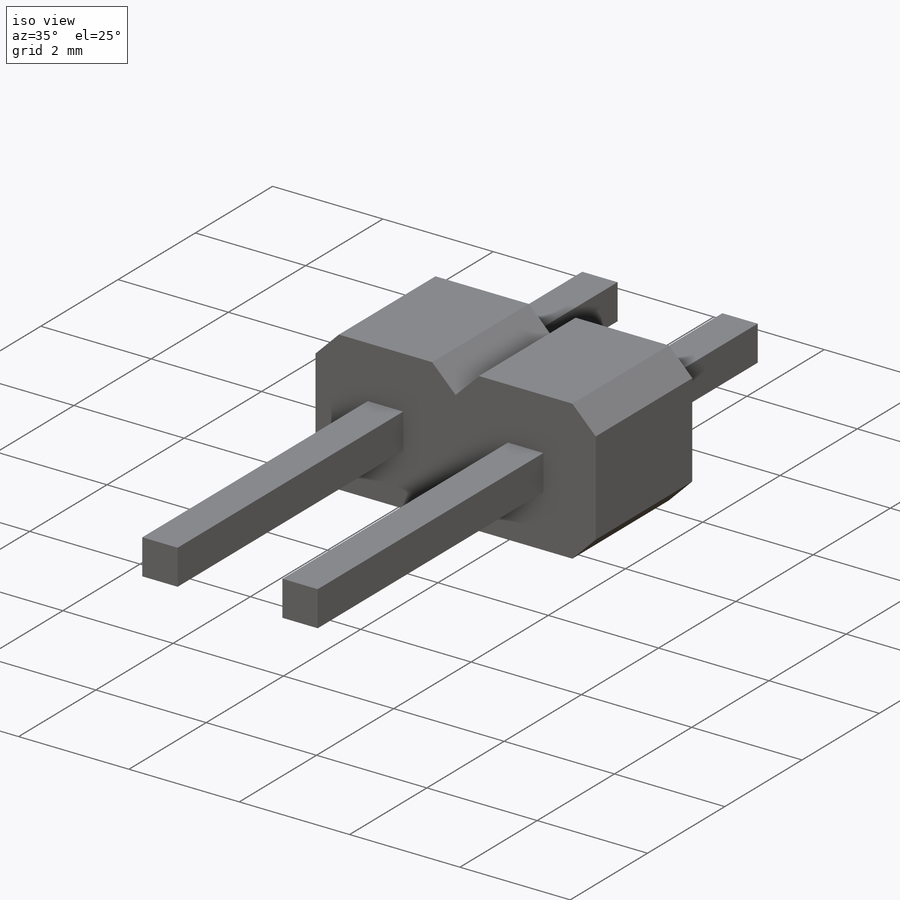
[diagram: iso view]
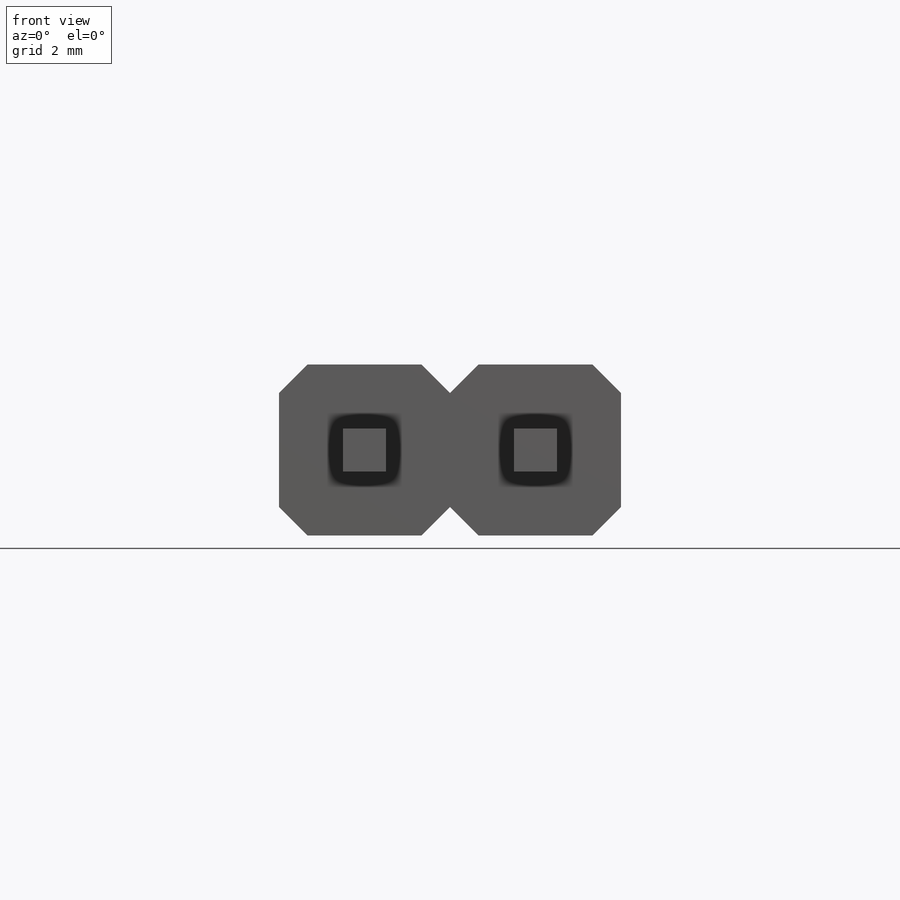
[diagram: front view]
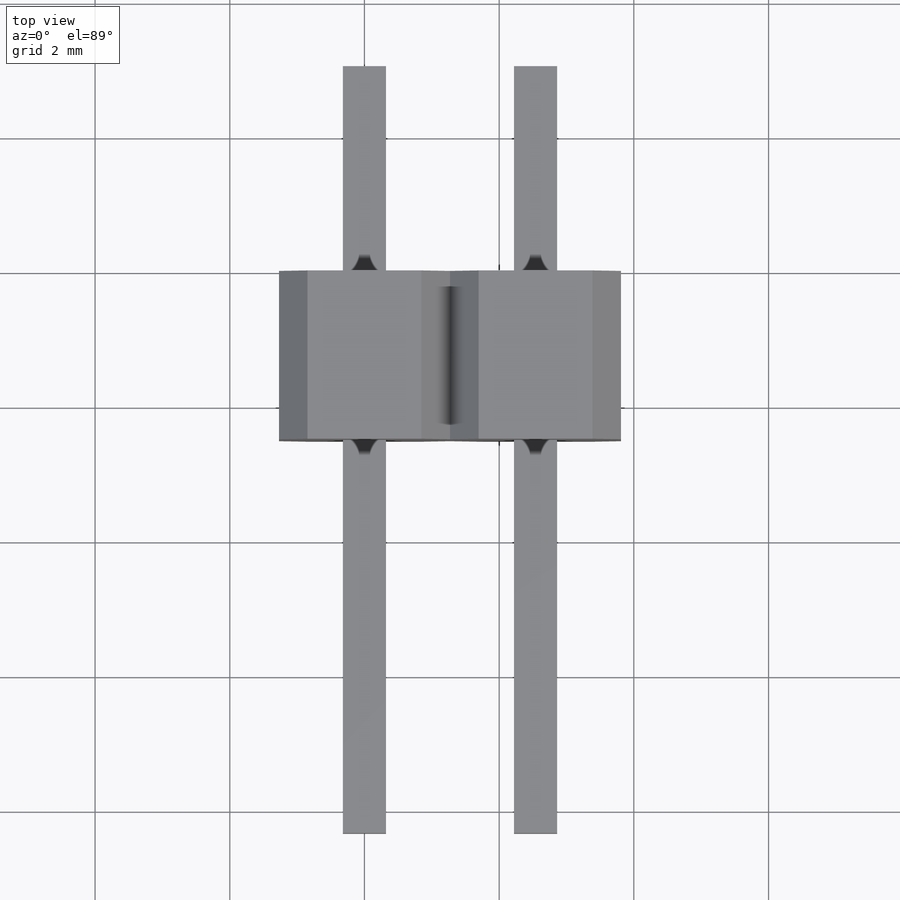
[diagram: top view]
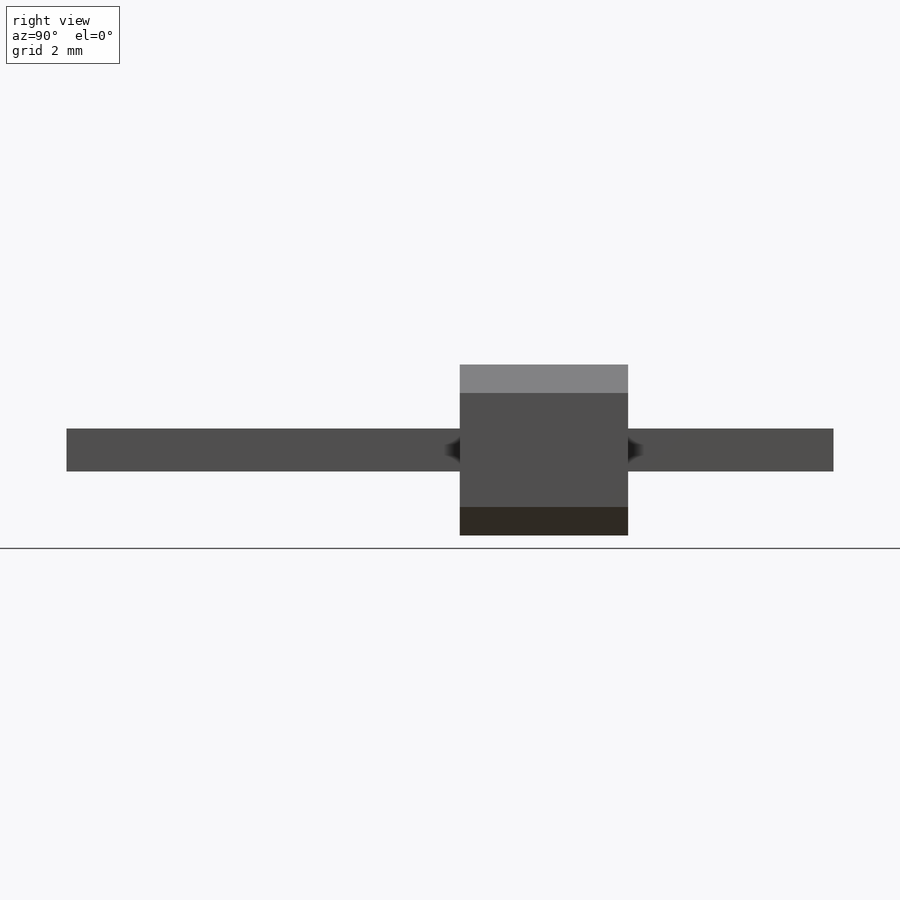
[diagram: right view]
SOLIDWORKS PART (.sldprt)
format: sldprt  version: not decoded by parser v0  size: 180,224 bytes
history: native  units: mm
features: sketch x3, extrude x3, material x1, pattern_linear x1 (+12 scaffold rows collapsed)
feature tree (20):
  scaffold x12  (default folders/planes/origin — collapsed)
  material  "Material <not specified>"
  sketch  "peg base"  dims[c1.D1=2.54mm c1.D2=2.54mm c2.D1=2.54mm c2.D2=2.54mm c2.D3=1.6mm c2.D4=1.6mm c2.D5=1.6mm c2.D6=1.6mm c2.D7=405.0deg c3.D3=0.8mm c3.D4=0.8mm c3.D5=0.8mm c3.D6=0.8mm c3.D1=0.6mm c4.D3=0.8mm]
  extrude  "peg"  Depth=2.5mm
  sketch  "tail base"  dims[D1=0.64mm D2=0.64mm]
  extrude  "tail"  Depth=3.05mm
  sketch  "head base"  dims[D1=0.64mm D2=0.64mm]
  extrude  "head"  Depth=5.84mm
  pattern_linear  "multiply"  Count1=2 Count2=1 Spacing1=2.54mm Spacing2=50mm
decode coverage: 7 of 7 modeling features carry decoded parameters
note: suppression state not decoded; provenance and decode notes live in map.json
